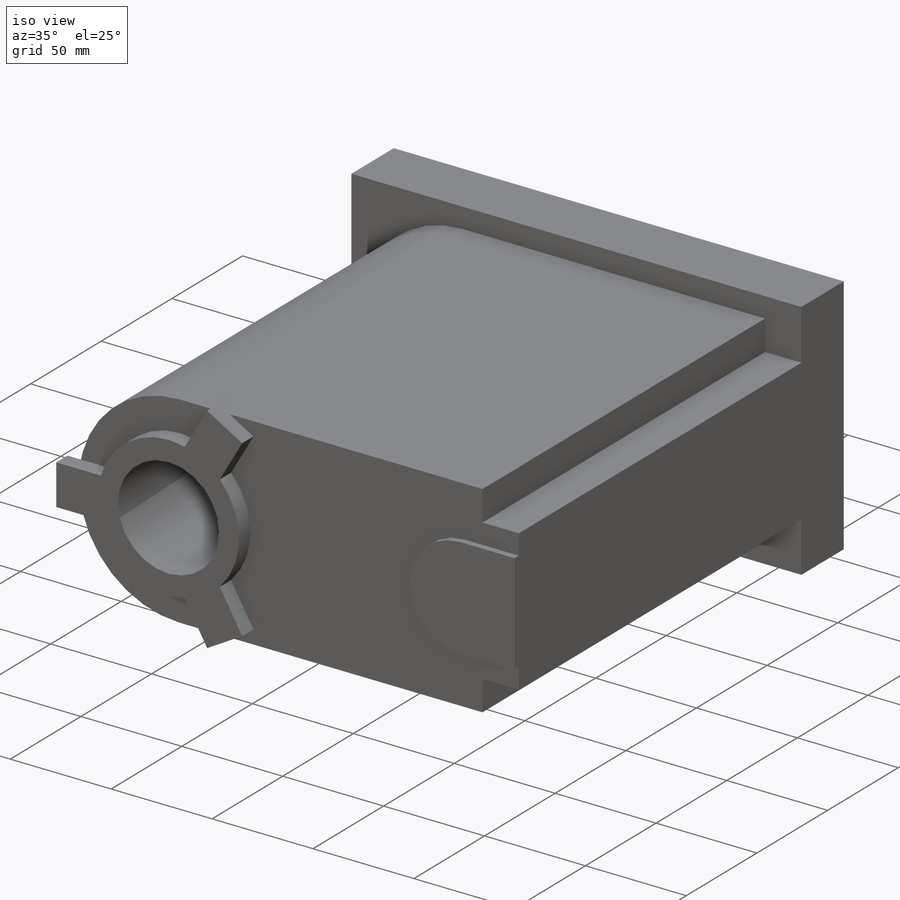
[diagram: iso view]
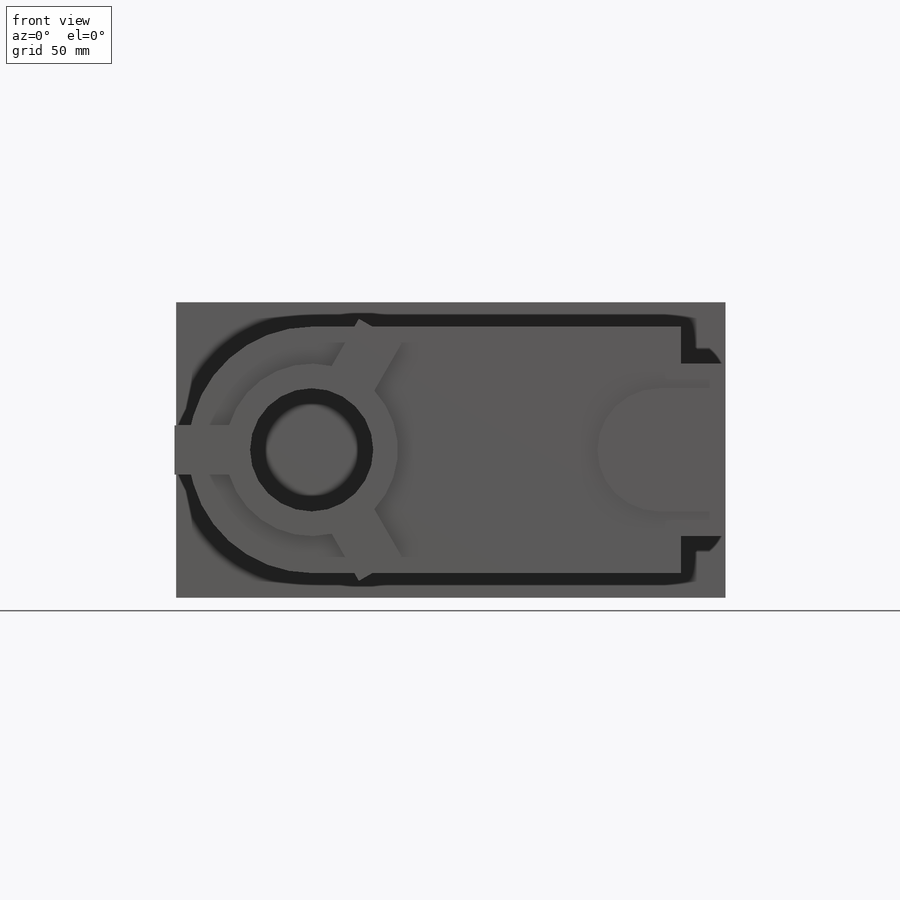
[diagram: front view]
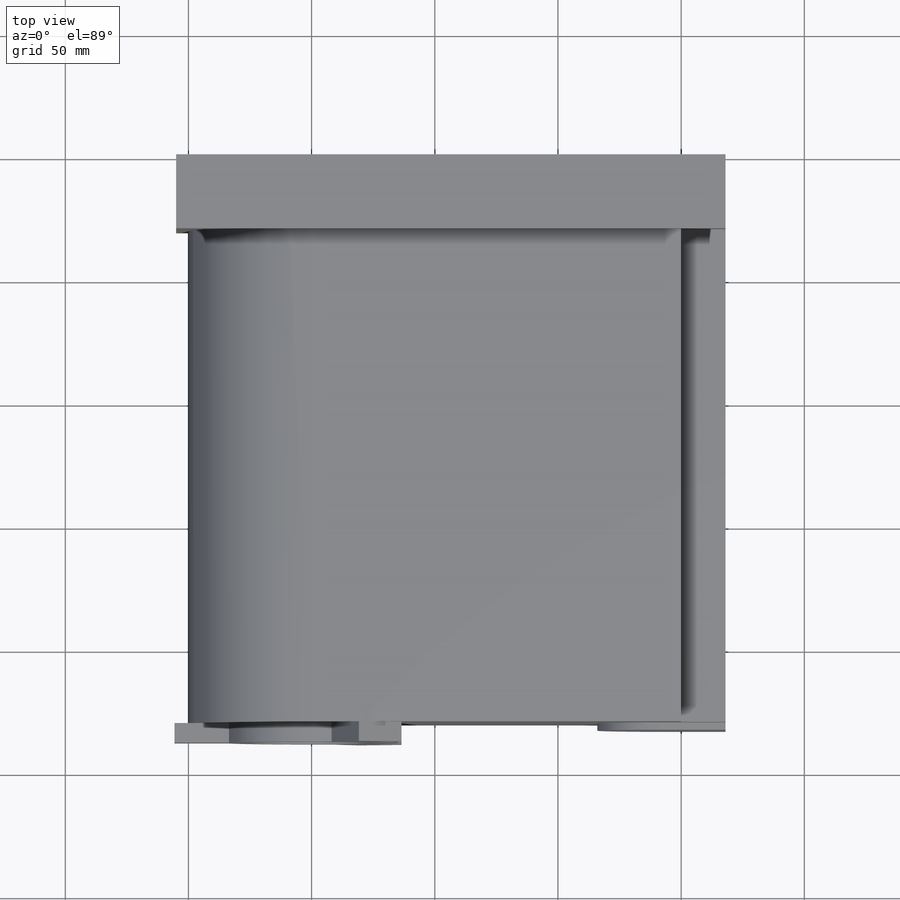
[diagram: top view]
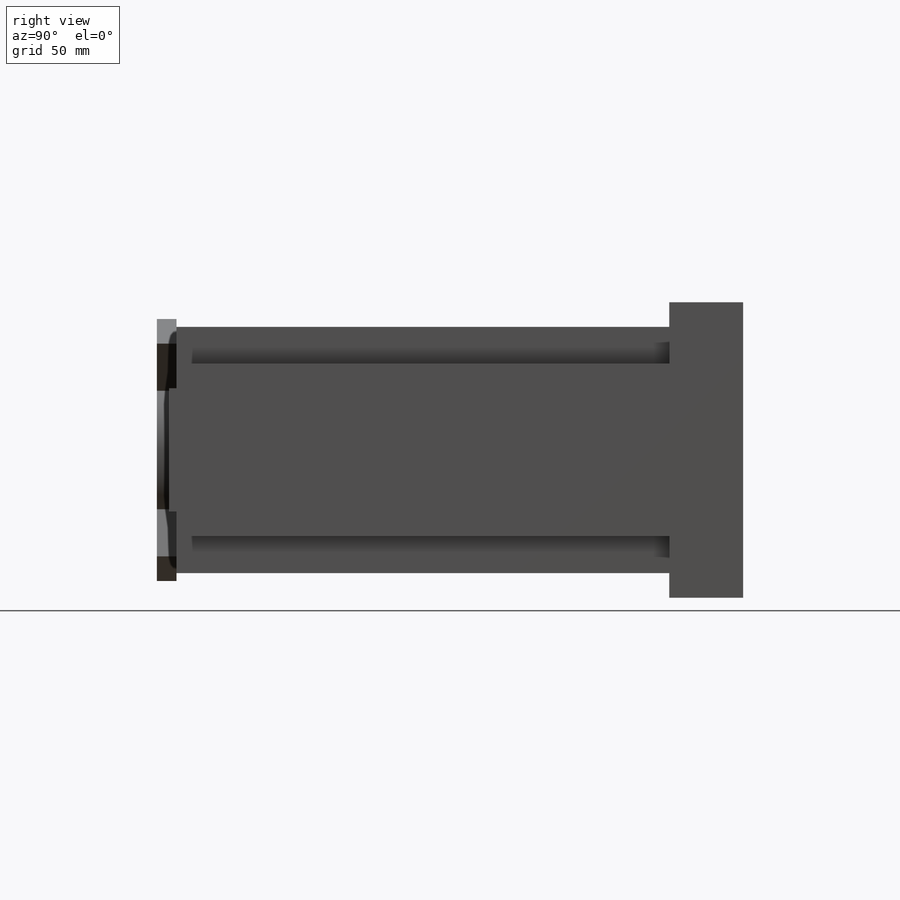
[diagram: right view]
SOLIDWORKS PART (.sldprt)
format: sldprt  version: not decoded by parser v0  size: 214,016 bytes
history: native  units: mm
features: sketch x5, extrude x5, plane x3, material x1 (+13 scaffold rows collapsed)
feature tree (27):
  scaffold x13  (default folders/planes/origin — collapsed)
  material  "材质 <未指定>"
  plane  "前视基准面"
  plane  "上视基准面"
  plane  "右视基准面"
  sketch  "草图1"  dims[D1=150.0mm]
  extrude  "凸台-拉伸1"  Depth=230mm
  sketch  "草图2"  dims[D1=15.0mm D2=15.0mm]
  extrude  "凸台-拉伸2"  Depth=18mm
  sketch  "草图3"  dims[D1=10.0mm D2=10.0mm D3=5.0mm]
  extrude  "凸台-拉伸3"  Depth=30mm
  sketch  "草图4"  dims[D1=10.0mm D2=10.0mm D3=27.0mm]
  extrude  "凸台-拉伸4"  Depth=3mm
  sketch  "草图5"  dims[c1.D1=20.0mm c1.D2=~40.707281mm c1.D3=26.0mm c2.D1=3.0]
  extrude  "凸台-拉伸5"  Depth=8mm
decode coverage: 10 of 10 modeling features carry decoded parameters
note: ~ marks probable driven/reference dimensions
note: suppression state not decoded; provenance and decode notes live in map.json
